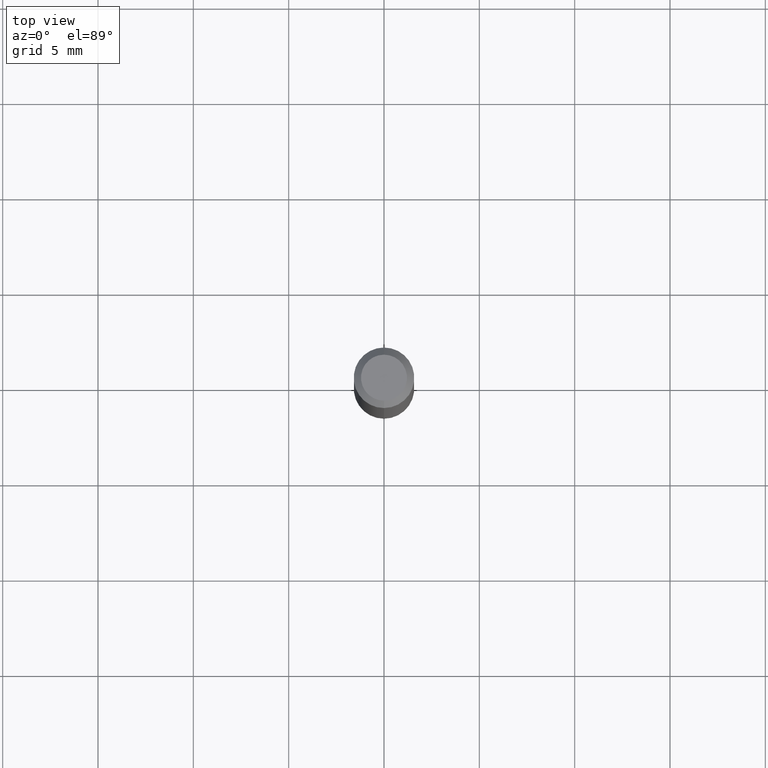
[diagram: clean part render]
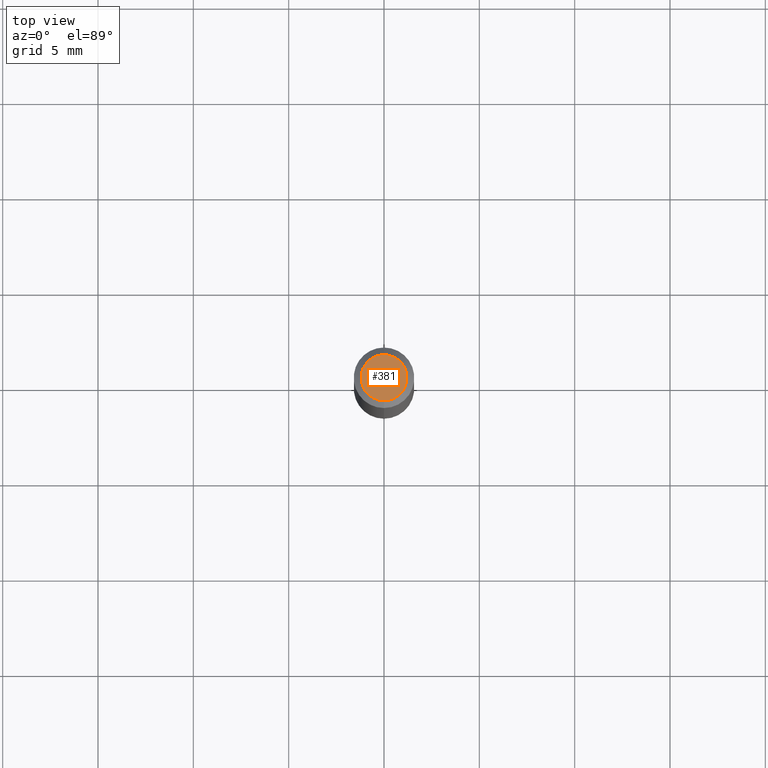
[diagram: same view with one face highlighted and labeled with its STEP entity id]
A machine part, top view. The second image highlights one B-rep face of the part: STEP entity #381.
In plain terms, the highlighted planar face has unit normal (0, -0, -1).
Its self-contained STEP definition (entity closure, byte-faithful):
#18 = CIRCLE ( 'NONE', #255, 0.04749999999999999362 ) ;
#63 = EDGE_CURVE ( 'NONE', #172, #420, #371, .T. ) ;
#106 = CARTESIAN_POINT ( 'NONE',  ( 2.166941364163083057E-46, -3.093792246832395657E-32, -8.861010061724306558E-18 ) ) ;
#108 = EDGE_CURVE ( 'NONE', #420, #172, #18, .T. ) ;
#172 = VERTEX_POINT ( 'NONE', #395 ) ;
#175 = AXIS2_PLACEMENT_3D ( 'NONE', #178, #408, #482 ) ;
#178 = CARTESIAN_POINT ( 'NONE',  ( 3.316907271900976096E-16, 0.04749999999999999362, -1.702751781560183396E-16 ) ) ;
#214 = ORIENTED_EDGE ( 'NONE', *, *, #108, .T. ) ;
#244 = DIRECTION ( 'NONE',  ( -6.982962677686266711E-15, -1.000000000000000000, 3.491466802634868489E-15 ) ) ;
#255 = AXIS2_PLACEMENT_3D ( 'NONE', #106, #321, #244 ) ;
#263 = CARTESIAN_POINT ( 'NONE',  ( 2.166941364163083057E-46, -3.093792246832395657E-32, -8.861010061724306558E-18 ) ) ;
#298 = CARTESIAN_POINT ( 'NONE',  ( -3.773273898774340269E-16, -0.04749999999999999362, 1.569836630634318666E-16 ) ) ;
#302 = PLANE ( 'NONE',  #175 ) ;
#321 = DIRECTION ( 'NONE',  ( -2.445478956765124667E-29, 3.491466802634867700E-15, 1.000000000000000000 ) ) ;
#371 = CIRCLE ( 'NONE', #484, 0.04749999999999999362 ) ;
#372 = FACE_OUTER_BOUND ( 'NONE', #487, .T. ) ;
#381 = ADVANCED_FACE ( 'NONE', ( #372 ), #302, .F. ) ;
#386 = DIRECTION ( 'NONE',  ( -6.982962677686266711E-15, -1.000000000000000000, 3.491466802634868489E-15 ) ) ;
#395 = CARTESIAN_POINT ( 'NONE',  ( 3.840629472727447874E-16, 0.04749999999999999362, -1.747056831868805136E-16 ) ) ;
#408 = DIRECTION ( 'NONE',  ( 2.445478956765124106E-29, -3.491466802634867700E-15, -1.000000000000000000 ) ) ;
#420 = VERTEX_POINT ( 'NONE', #298 ) ;
#422 = DIRECTION ( 'NONE',  ( -2.445478956765124667E-29, 3.491466802634867700E-15, 1.000000000000000000 ) ) ;
#435 = ORIENTED_EDGE ( 'NONE', *, *, #63, .T. ) ;
#482 = DIRECTION ( 'NONE',  ( 6.982962677686265922E-15, 1.000000000000000000, -3.491466802634867700E-15 ) ) ;
#484 = AXIS2_PLACEMENT_3D ( 'NONE', #263, #422, #386 ) ;
#487 = EDGE_LOOP ( 'NONE', ( #435, #214 ) ) ;